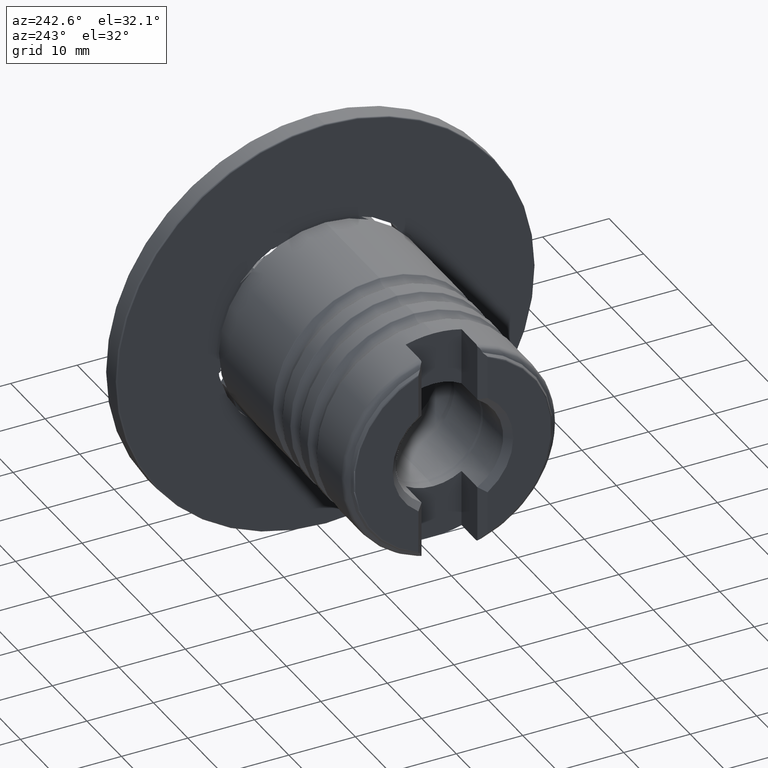
[diagram: clean part render]
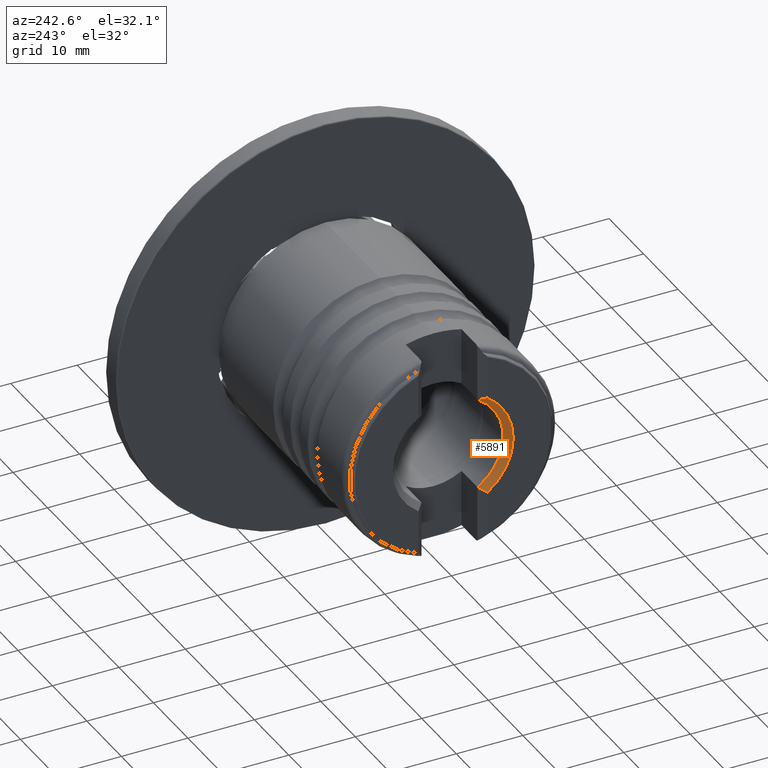
[diagram: same view with one face highlighted and labeled with its STEP entity id]
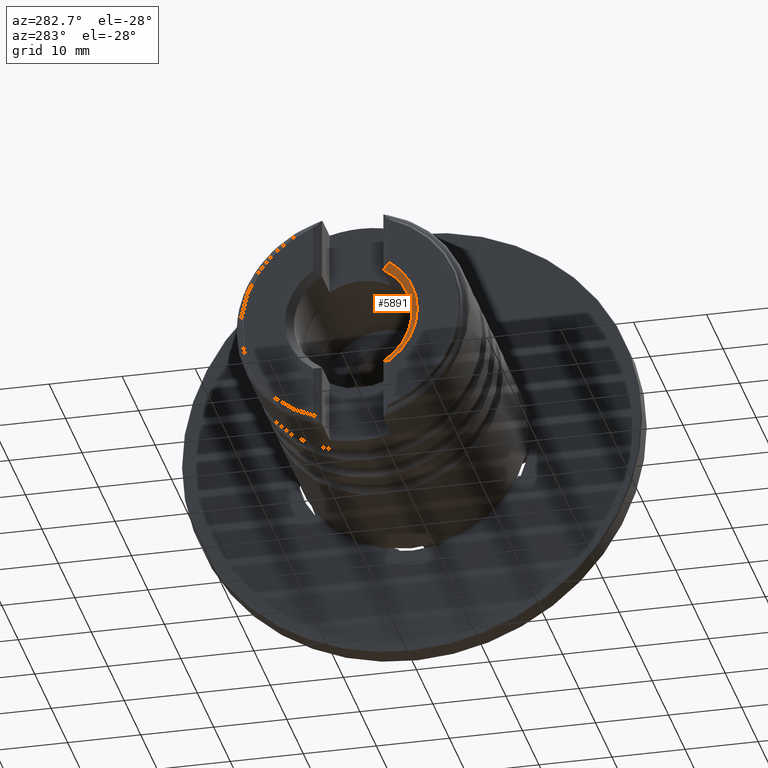
[diagram: same view with one face highlighted and labeled with its STEP entity id]
A machine part, auxiliary view. The second image highlights one B-rep face of the part: STEP entity #5891.
A second angle (auxiliary view) of the same face is appended — the face is thin or edge-on in the first view.
In plain terms, the highlighted conical surface has half-angle 45 deg.
Its self-contained STEP definition (entity closure, byte-faithful):
#289 = CARTESIAN_POINT ( 'NONE',  ( -38.72493930000000262, -4.200000000000005507, 6.896783670668510169 ) ) ;
#320 = EDGE_CURVE ( 'NONE', #805, #4920, #5839, .T. ) ;
#716 = CARTESIAN_POINT ( 'NONE',  ( -39.72493930000000262, -5.200000000000007283, 7.437447478806133994 ) ) ;
#805 = VERTEX_POINT ( 'NONE', #1451 ) ;
#1160 = AXIS2_PLACEMENT_3D ( 'NONE', #1921, #1449, #3507 ) ;
#1369 = EDGE_CURVE ( 'NONE', #3087, #2446, #3145, .T. ) ;
#1449 = DIRECTION ( 'NONE',  ( -1.000000000000000000, 0.0000000000000000000, 0.0000000000000000000 ) ) ;
#1451 = CARTESIAN_POINT ( 'NONE',  ( -39.72493930000000262, -5.200000000000007283, 7.437447478806133994 ) ) ;
#1557 = DIRECTION ( 'NONE',  ( 0.0000000000000000000, 0.0000000000000000000, -1.000000000000000000 ) ) ;
#1568 = CARTESIAN_POINT ( 'NONE',  ( -38.72493930000000972, -4.200000000000005507, -6.896783670668512833 ) ) ;
#1597 = EDGE_LOOP ( 'NONE', ( #6653, #6158, #5178, #3718 ) ) ;
#1695 = AXIS2_PLACEMENT_3D ( 'NONE', #4723, #3637, #1557 ) ;
#1784 = CARTESIAN_POINT ( 'NONE',  ( -38.72493930000000262, -4.200000000000005507, 6.896783670668510169 ) ) ;
#1921 = CARTESIAN_POINT ( 'NONE',  ( -38.72493930000000972, 0.0000000000000000000, 0.0000000000000000000 ) ) ;
#2094 = CARTESIAN_POINT ( 'NONE',  ( -39.72493930000000262, -5.200000000000007283, -7.437447478806133994 ) ) ;
#2188 = CIRCLE ( 'NONE', #5719, 9.074999999999997513 ) ;
#2381 = FACE_OUTER_BOUND ( 'NONE', #1597, .T. ) ;
#2446 = VERTEX_POINT ( 'NONE', #2815 ) ;
#2698 = CIRCLE ( 'NONE', #1695, 8.074999999999993960 ) ;
#2815 = CARTESIAN_POINT ( 'NONE',  ( -39.72493930000000262, -5.200000000000007283, -7.437447478806133994 ) ) ;
#3087 = VERTEX_POINT ( 'NONE', #4641 ) ;
#3145 = B_SPLINE_CURVE_WITH_KNOTS ( 'NONE', 3,
 ( #1568, #5271, #4177, #2094 ),
 .UNSPECIFIED., .F., .F.,
 ( 4, 4 ),
 ( 3.043218969770369505E-07, 0.001514344398456968742 ),
 .UNSPECIFIED. ) ;
#3164 = EDGE_CURVE ( 'NONE', #805, #2446, #2188, .T. ) ;
#3207 = CONICAL_SURFACE ( 'NONE', #1160, 8.074999999999993960, 0.7853981633974500554 ) ;
#3507 = DIRECTION ( 'NONE',  ( 0.0000000000000000000, 0.0000000000000000000, 1.000000000000000000 ) ) ;
#3637 = DIRECTION ( 'NONE',  ( 1.000000000000000000, -0.0000000000000000000, -0.0000000000000000000 ) ) ;
#3718 = ORIENTED_EDGE ( 'NONE', *, *, #320, .T. ) ;
#4177 = CARTESIAN_POINT ( 'NONE',  ( -39.39005375887060012, -4.865114458870598568, -7.262968065596918876 ) ) ;
#4210 = DIRECTION ( 'NONE',  ( 0.0000000000000000000, 0.0000000000000000000, -1.000000000000000000 ) ) ;
#4406 = CARTESIAN_POINT ( 'NONE',  ( -39.39005375887060012, -4.865114458870597680, 7.262968065596918876 ) ) ;
#4641 = CARTESIAN_POINT ( 'NONE',  ( -38.72493930000000972, -4.200000000000005507, -6.896783670668512833 ) ) ;
#4723 = CARTESIAN_POINT ( 'NONE',  ( -38.72493930000000972, 0.0000000000000000000, 0.0000000000000000000 ) ) ;
#4889 = CARTESIAN_POINT ( 'NONE',  ( -39.05661478747934723, -4.531675487479356335, 7.083137567695683146 ) ) ;
#4920 = VERTEX_POINT ( 'NONE', #289 ) ;
#5178 = ORIENTED_EDGE ( 'NONE', *, *, #3164, .F. ) ;
#5231 = DIRECTION ( 'NONE',  ( 1.000000000000000000, -0.0000000000000000000, -0.0000000000000000000 ) ) ;
#5271 = CARTESIAN_POINT ( 'NONE',  ( -39.05661478747934723, -4.531675487479357223, -7.083137567695684922 ) ) ;
#5719 = AXIS2_PLACEMENT_3D ( 'NONE', #5844, #5231, #4210 ) ;
#5839 = B_SPLINE_CURVE_WITH_KNOTS ( 'NONE', 3,
 ( #716, #4406, #4889, #1784 ),
 .UNSPECIFIED., .F., .F.,
 ( 4, 4 ),
 ( 3.014042274562263646E-07, 0.001514341480787450862 ),
 .UNSPECIFIED. ) ;
#5844 = CARTESIAN_POINT ( 'NONE',  ( -39.72493930000000972, 0.0000000000000000000, 0.0000000000000000000 ) ) ;
#5891 = ADVANCED_FACE ( 'NONE', ( #2381 ), #3207, .F. ) ;
#6158 = ORIENTED_EDGE ( 'NONE', *, *, #1369, .T. ) ;
#6644 = EDGE_CURVE ( 'NONE', #4920, #3087, #2698, .T. ) ;
#6653 = ORIENTED_EDGE ( 'NONE', *, *, #6644, .T. ) ;